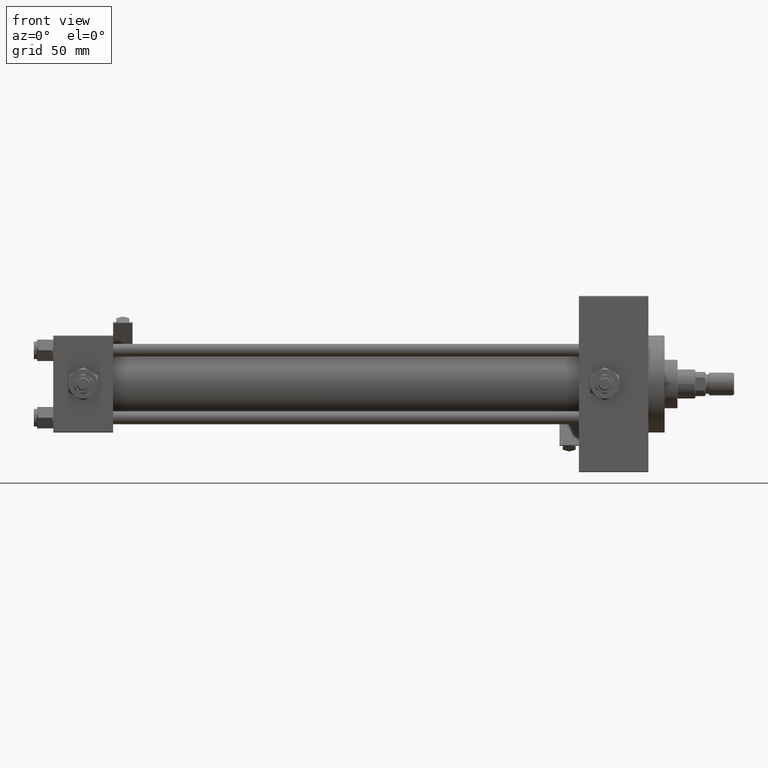
[diagram: clean part render]
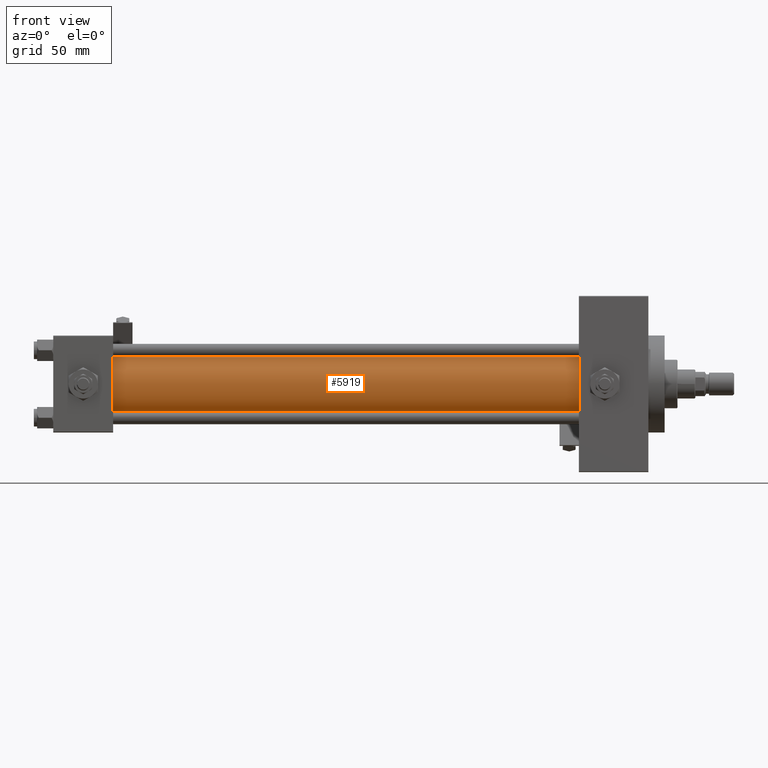
[diagram: same view with one face highlighted and labeled with its STEP entity id]
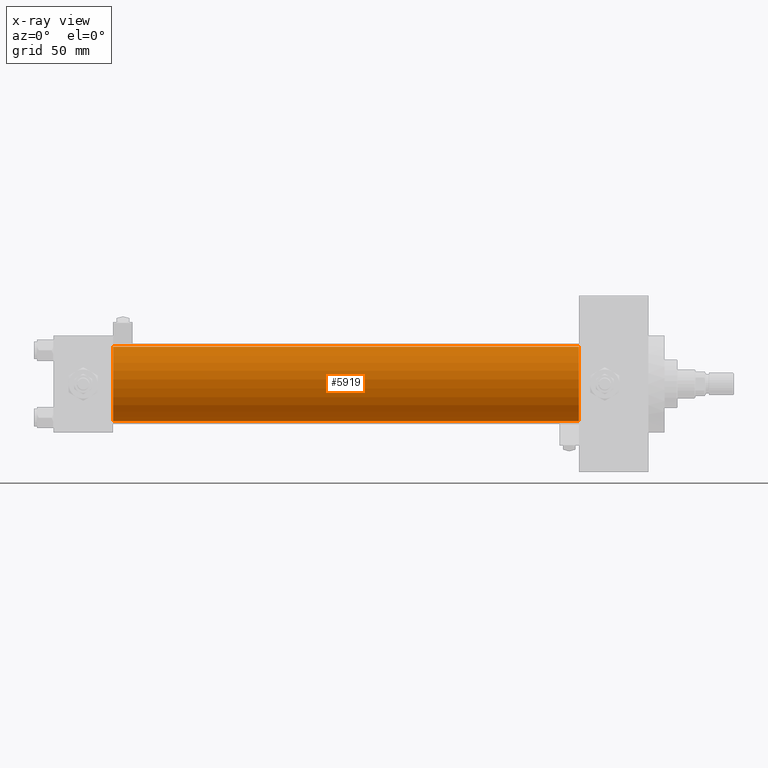
[diagram: x-ray of the same camera — body ghosted, the highlighted face saturated]
A machine part, front view. The second image highlights one B-rep face of the part: STEP entity #5919.
The next image is the same camera in x-ray: the body ghosted, the highlighted face saturated — about 0% of this face is hidden behind the body in this view.
In plain terms, the highlighted cylindrical surface (partial cylindrical patch) has radius 23 mm, axis along (-1, -0, -0).
Its self-contained STEP definition (entity closure, byte-faithful):
#607 = CARTESIAN_POINT ( 'NONE',  ( 36.99999999999997868, 2.146024240737016609E-16, -23.00000000000000000 ) ) ;
#624 = EDGE_CURVE ( 'NONE', #9793, #21252, #43878, .T. ) ;
#1230 = CARTESIAN_POINT ( 'NONE',  ( 324.9999999999999432, 2.146024240737016609E-16, -23.00000000000000000 ) ) ;
#2500 = EDGE_CURVE ( 'NONE', #21252, #9605, #31693, .T. ) ;
#2895 = VECTOR ( 'NONE', #30678, 1000.000000000000000 ) ;
#5668 = DIRECTION ( 'NONE',  ( 0.000000000000000000, 0.000000000000000000, -1.000000000000000000 ) ) ;
#5919 = ADVANCED_FACE ( 'NONE', ( #12337 ), #40584, .T. ) ;
#8462 = AXIS2_PLACEMENT_3D ( 'NONE', #45050, #25286, #33498 ) ;
#8844 = ORIENTED_EDGE ( 'NONE', *, *, #624, .F. ) ;
#9292 = CARTESIAN_POINT ( 'NONE',  ( 324.9999999999999432, -2.602085213965210642E-15, 0.000000000000000000 ) ) ;
#9605 = VERTEX_POINT ( 'NONE', #607 ) ;
#9793 = VERTEX_POINT ( 'NONE', #46054 ) ;
#12337 = FACE_OUTER_BOUND ( 'NONE', #45478, .T. ) ;
#16803 = LINE ( 'NONE', #29102, #38731 ) ;
#17543 = DIRECTION ( 'NONE',  ( -1.000000000000000000, -0.000000000000000000, -0.000000000000000000 ) ) ;
#19805 = CARTESIAN_POINT ( 'NONE',  ( 324.9999999999999432, -2.602085213965210642E-15, 0.000000000000000000 ) ) ;
#21252 = VERTEX_POINT ( 'NONE', #1230 ) ;
#25286 = DIRECTION ( 'NONE',  ( 1.000000000000000000, -0.000000000000000000, 0.000000000000000000 ) ) ;
#26315 = ORIENTED_EDGE ( 'NONE', *, *, #42845, .T. ) ;
#29102 = CARTESIAN_POINT ( 'NONE',  ( 324.9999999999999432, -2.602085213965210642E-15, 23.00000000000000000 ) ) ;
#30678 = DIRECTION ( 'NONE',  ( -1.000000000000000000, -0.000000000000000000, -0.000000000000000000 ) ) ;
#31693 = LINE ( 'NONE', #47345, #2895 ) ;
#33498 = DIRECTION ( 'NONE',  ( 0.000000000000000000, 0.000000000000000000, 1.000000000000000000 ) ) ;
#35463 = DIRECTION ( 'NONE',  ( 0.000000000000000000, 0.000000000000000000, 1.000000000000000000 ) ) ;
#35714 = DIRECTION ( 'NONE',  ( -1.000000000000000000, -0.000000000000000000, -0.000000000000000000 ) ) ;
#38225 = DIRECTION ( 'NONE',  ( 1.000000000000000000, 0.000000000000000000, 0.000000000000000000 ) ) ;
#38731 = VECTOR ( 'NONE', #17543, 1000.000000000000000 ) ;
#39231 = ORIENTED_EDGE ( 'NONE', *, *, #49565, .T. ) ;
#40584 = CYLINDRICAL_SURFACE ( 'NONE', #43252, 23.00000000000000000 ) ;
#42339 = AXIS2_PLACEMENT_3D ( 'NONE', #9292, #38225, #5668 ) ;
#42845 = EDGE_CURVE ( 'NONE', #9793, #50192, #16803, .T. ) ;
#43252 = AXIS2_PLACEMENT_3D ( 'NONE', #19805, #35714, #35463 ) ;
#43878 = CIRCLE ( 'NONE', #42339, 23.00000000000000000 ) ;
#45050 = CARTESIAN_POINT ( 'NONE',  ( 36.99999999999997868, -2.602085213965210642E-15, 0.000000000000000000 ) ) ;
#45478 = EDGE_LOOP ( 'NONE', ( #50124, #8844, #26315, #39231 ) ) ;
#46054 = CARTESIAN_POINT ( 'NONE',  ( 324.9999999999999432, -2.602085213965210642E-15, 23.00000000000000000 ) ) ;
#46142 = CARTESIAN_POINT ( 'NONE',  ( 36.99999999999997868, -2.602085213965210642E-15, 23.00000000000000000 ) ) ;
#47345 = CARTESIAN_POINT ( 'NONE',  ( 324.9999999999999432, 2.146024240737016609E-16, -23.00000000000000000 ) ) ;
#48644 = CIRCLE ( 'NONE', #8462, 23.00000000000000000 ) ;
#49565 = EDGE_CURVE ( 'NONE', #50192, #9605, #48644, .T. ) ;
#50124 = ORIENTED_EDGE ( 'NONE', *, *, #2500, .F. ) ;
#50192 = VERTEX_POINT ( 'NONE', #46142 ) ;